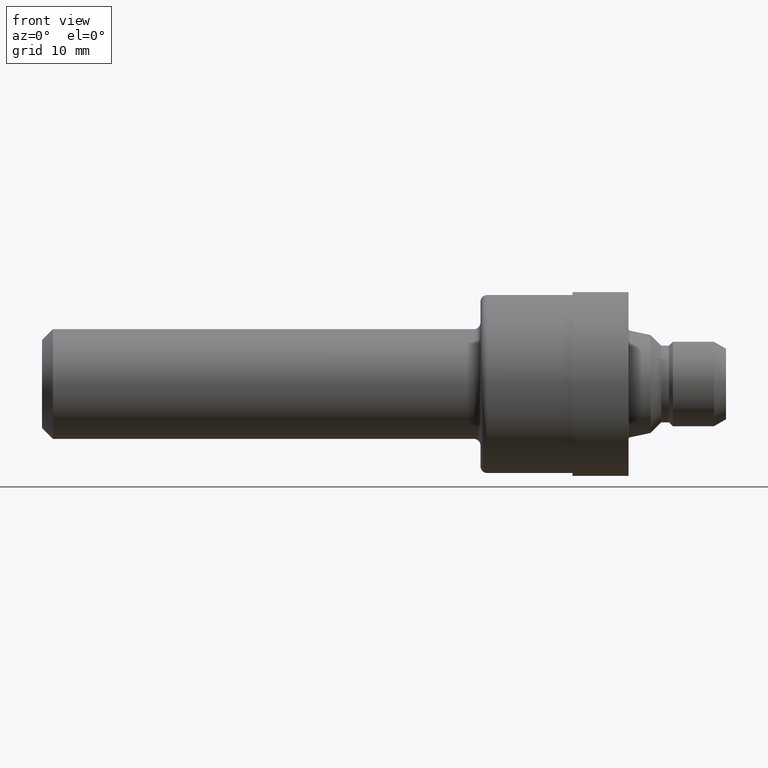
[diagram: clean part render]
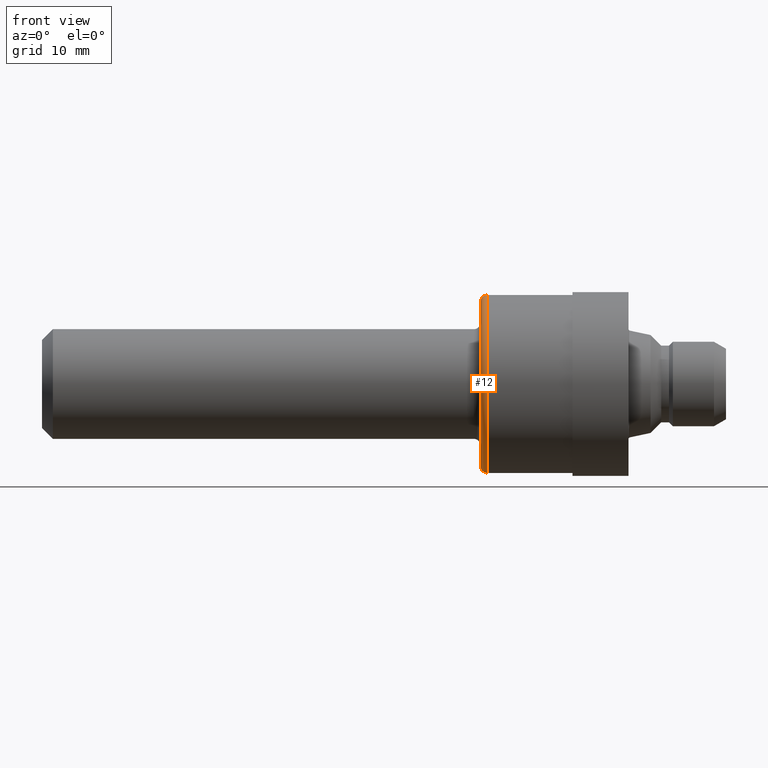
[diagram: same view with one face highlighted and labeled with its STEP entity id]
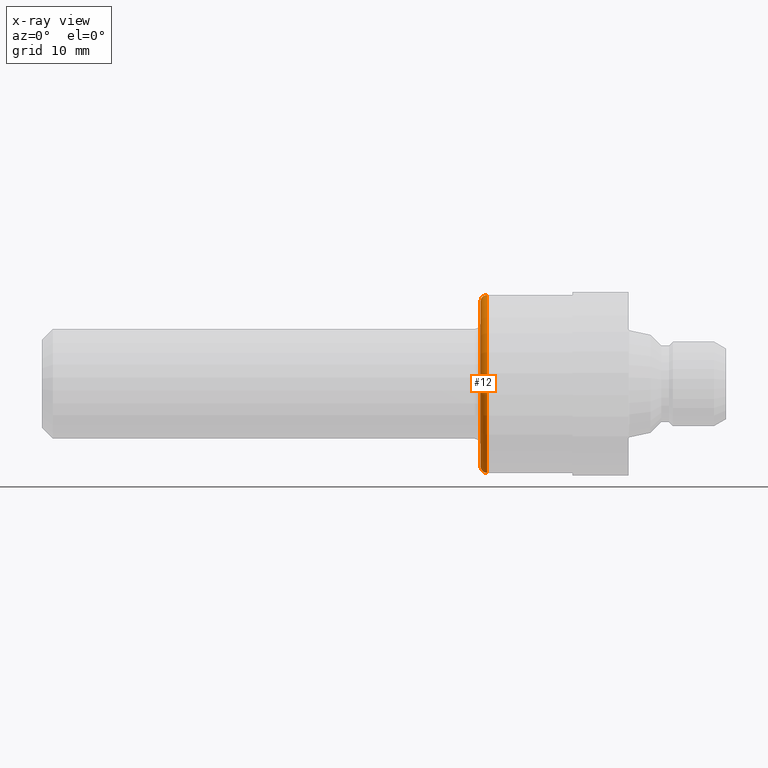
[diagram: x-ray of the same camera — body ghosted, the highlighted face saturated]
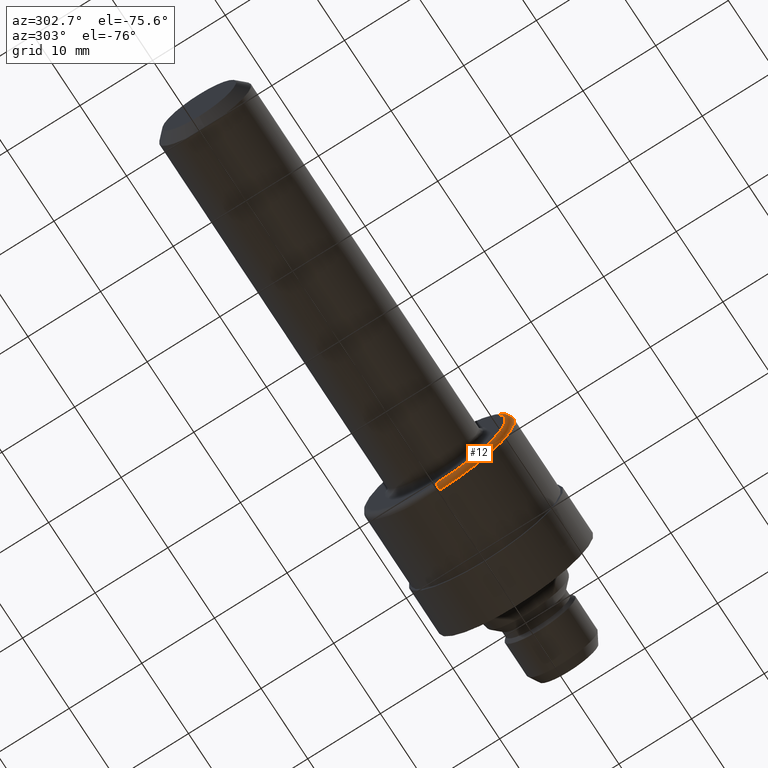
[diagram: same view with one face highlighted and labeled with its STEP entity id]
A machine part, front view. The second image highlights one B-rep face of the part: STEP entity #12.
The next image is the same camera in x-ray: the body ghosted, the highlighted face saturated — about 0% of this face is hidden behind the body in this view.
A second angle (auxiliary view) of the same face is appended — the face is thin or edge-on in the first view.
In plain terms, the highlighted toroidal blend (fillet) surface has major radius 9.5504 mm and minor (blend) radius 0.762 mm.
Its self-contained STEP definition (entity closure, byte-faithful):
#7 = EDGE_LOOP ( 'NONE', ( #739, #464, #361, #93 ) ) ;
#8 = VERTEX_POINT ( 'NONE', #757 ) ;
#11 = DIRECTION ( 'NONE',  ( -1.000000000000000000, -0.0000000000000000000, -0.0000000000000000000 ) ) ;
#12 = ADVANCED_FACE ( 'NONE', ( #44 ), #250, .T. ) ;
#26 = CARTESIAN_POINT ( 'NONE',  ( 2.000000000000000000, 0.0000000000000000000, 0.0000000000000000000 ) ) ;
#31 = CIRCLE ( 'NONE', #622, 0.4059999999999999720 ) ;
#44 = FACE_OUTER_BOUND ( 'NONE', #7, .T. ) ;
#93 = ORIENTED_EDGE ( 'NONE', *, *, #163, .F. ) ;
#102 = EDGE_CURVE ( 'NONE', #300, #149, #31, .T. ) ;
#149 = VERTEX_POINT ( 'NONE', #620 ) ;
#163 = EDGE_CURVE ( 'NONE', #8, #560, #525, .T. ) ;
#187 = CARTESIAN_POINT ( 'NONE',  ( 2.029999999999999805, 4.972066004538254105E-17, -0.4059999999999999720 ) ) ;
#212 = CARTESIAN_POINT ( 'NONE',  ( 2.029999999999999805, 4.604671964794048956E-17, -0.3760000000000000564 ) ) ;
#216 = DIRECTION ( 'NONE',  ( -0.0000000000000000000, 1.000000000000000000, 1.224646799147353207E-16 ) ) ;
#220 = DIRECTION ( 'NONE',  ( 0.0000000000000000000, -1.224646799147354933E-16, 1.000000000000000000 ) ) ;
#228 = CARTESIAN_POINT ( 'NONE',  ( 2.029999999999999805, 0.0000000000000000000, 0.3760000000000000564 ) ) ;
#230 = DIRECTION ( 'NONE',  ( 0.0000000000000000000, -1.000000000000000000, 0.0000000000000000000 ) ) ;
#231 = CIRCLE ( 'NONE', #345, 0.02999999999999995379 ) ;
#233 = DIRECTION ( 'NONE',  ( 0.0000000000000000000, 0.0000000000000000000, -1.000000000000000000 ) ) ;
#250 = TOROIDAL_SURFACE ( 'NONE', #702, 0.3760000000000000564, 0.02999999999999998848 ) ;
#300 = VERTEX_POINT ( 'NONE', #187 ) ;
#345 = AXIS2_PLACEMENT_3D ( 'NONE', #228, #230, #233 ) ;
#347 = AXIS2_PLACEMENT_3D ( 'NONE', #212, #216, #220 ) ;
#361 = ORIENTED_EDGE ( 'NONE', *, *, #481, .T. ) ;
#402 = CARTESIAN_POINT ( 'NONE',  ( 2.029999999999999805, 0.0000000000000000000, 0.0000000000000000000 ) ) ;
#413 = DIRECTION ( 'NONE',  ( 0.0000000000000000000, 0.0000000000000000000, 1.000000000000000000 ) ) ;
#419 = DIRECTION ( 'NONE',  ( -1.000000000000000000, -0.0000000000000000000, -0.0000000000000000000 ) ) ;
#464 = ORIENTED_EDGE ( 'NONE', *, *, #102, .T. ) ;
#479 = EDGE_CURVE ( 'NONE', #300, #8, #508, .T. ) ;
#481 = EDGE_CURVE ( 'NONE', #149, #560, #231, .T. ) ;
#508 = CIRCLE ( 'NONE', #347, 0.02999999999999995379 ) ;
#525 = CIRCLE ( 'NONE', #550, 0.3760000000000000564 ) ;
#544 = CARTESIAN_POINT ( 'NONE',  ( 2.000000000000000000, 0.0000000000000000000, 0.3760000000000000564 ) ) ;
#550 = AXIS2_PLACEMENT_3D ( 'NONE', #26, #11, #831 ) ;
#560 = VERTEX_POINT ( 'NONE', #544 ) ;
#620 = CARTESIAN_POINT ( 'NONE',  ( 2.029999999999999805, 0.0000000000000000000, 0.4059999999999999720 ) ) ;
#622 = AXIS2_PLACEMENT_3D ( 'NONE', #402, #419, #413 ) ;
#702 = AXIS2_PLACEMENT_3D ( 'NONE', #789, #842, #751 ) ;
#739 = ORIENTED_EDGE ( 'NONE', *, *, #479, .F. ) ;
#751 = DIRECTION ( 'NONE',  ( 0.0000000000000000000, 0.0000000000000000000, 1.000000000000000000 ) ) ;
#757 = CARTESIAN_POINT ( 'NONE',  ( 2.000000000000000000, 4.788368984666151531E-17, -0.3760000000000000564 ) ) ;
#789 = CARTESIAN_POINT ( 'NONE',  ( 2.029999999999999805, 0.0000000000000000000, 0.0000000000000000000 ) ) ;
#831 = DIRECTION ( 'NONE',  ( 0.0000000000000000000, 0.0000000000000000000, 1.000000000000000000 ) ) ;
#842 = DIRECTION ( 'NONE',  ( -1.000000000000000000, -0.0000000000000000000, -0.0000000000000000000 ) ) ;